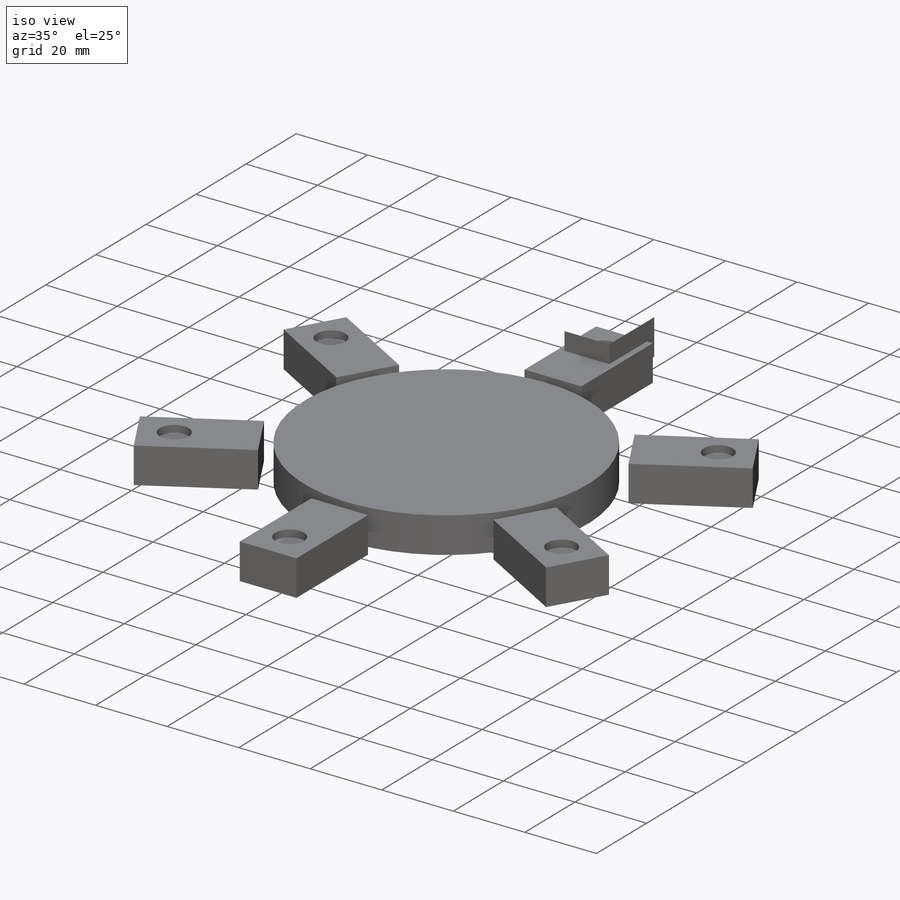
[diagram: iso view]
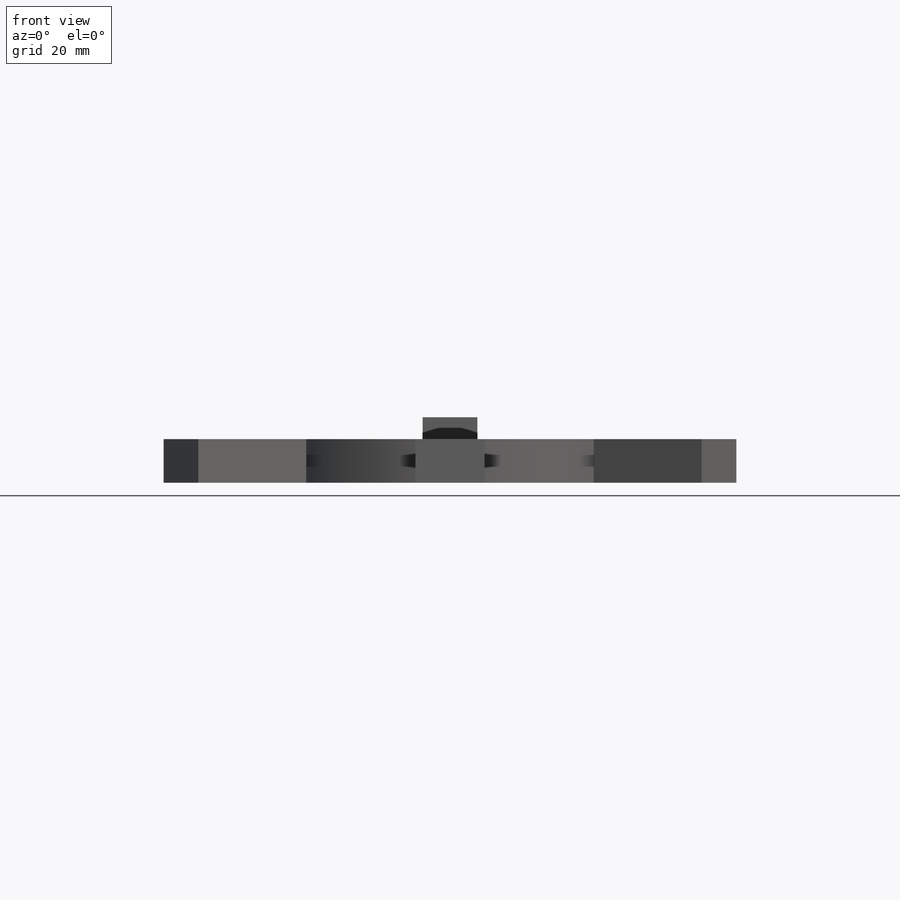
[diagram: front view]
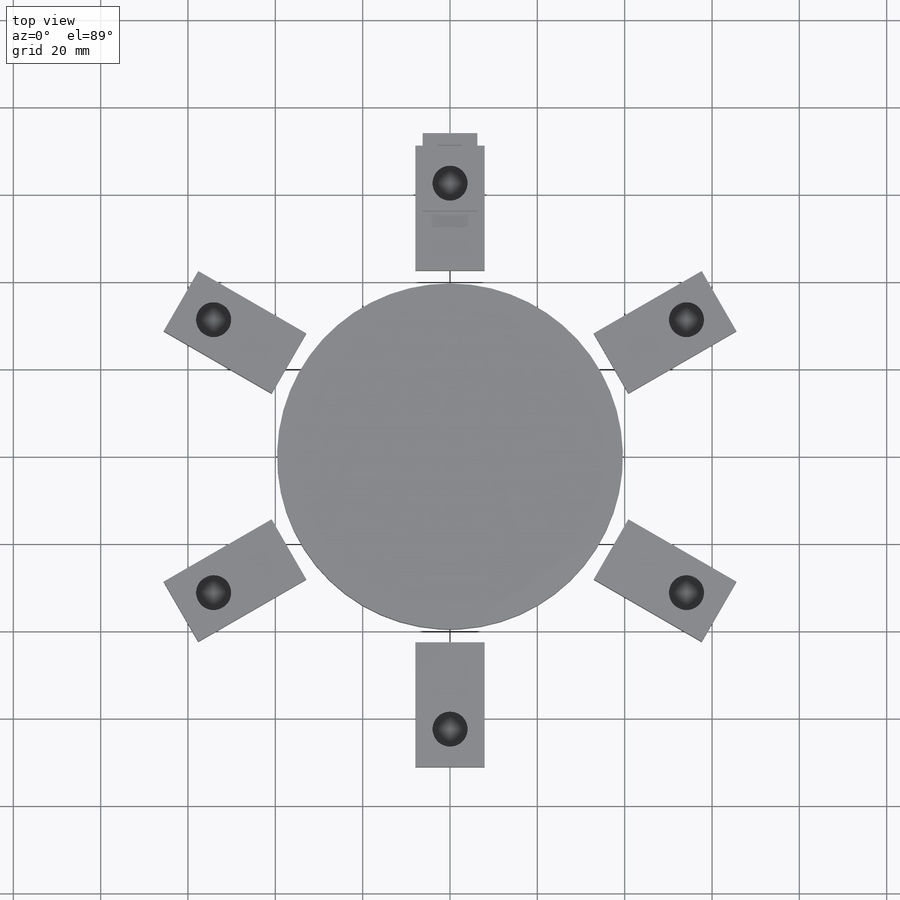
[diagram: top view]
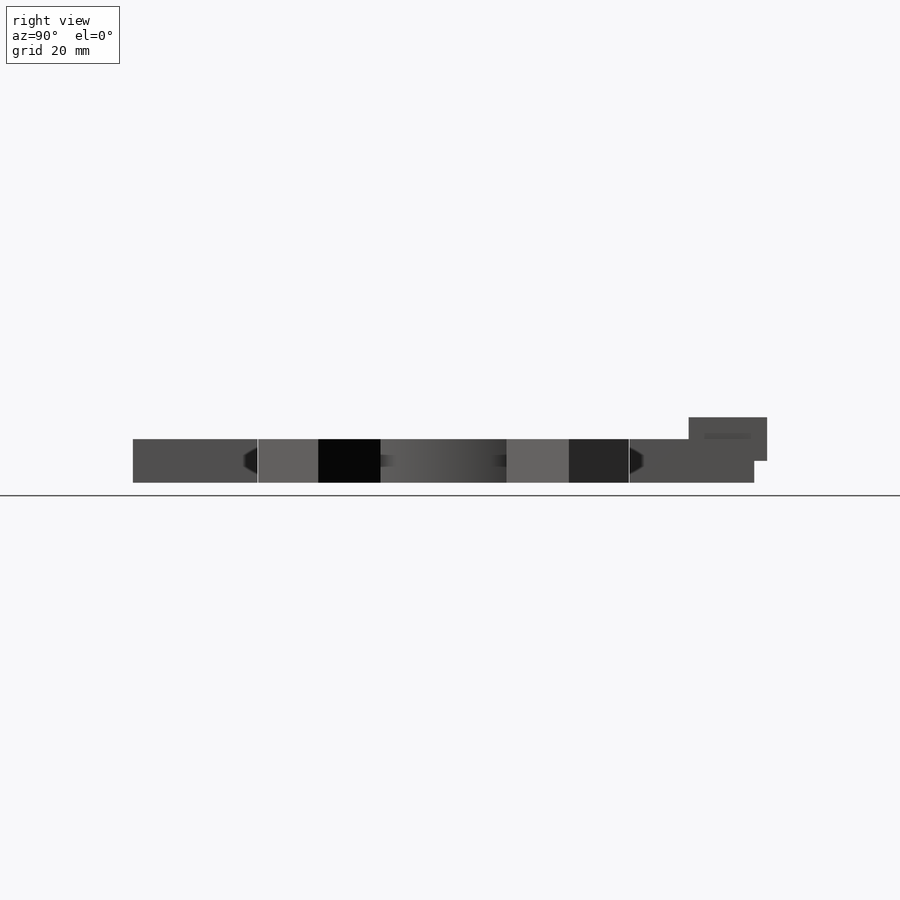
[diagram: right view]
SOLIDWORKS PART (.sldprt)
format: sldprt  version: not decoded by parser v0  size: 389,632 bytes
history: native  units: mm
features: sketch x5, extrude x2, material x1, surface_op x1, cut_extrude x1, pattern_circular x1 (+13 scaffold rows collapsed)
feature tree (24):
  scaffold x13  (default folders/planes/origin — collapsed)
  material  "Nylon 6/10"
  sketch  "Sketch1"
  extrude  "Boss-Extrude1"  Depth=10mm
  sketch  "Sketch2"
  extrude  "Boss-Extrude2"  Depth=10mm
  sketch  "Sketch3"
  surface_op  "Surface-Extrude1"
  sketch  "Sketch3<2>"  dims[D1=10.0mm]
  sketch  "Sketch4"
  cut_extrude  "Cut-Extrude1"  Depth=2mm
  pattern_circular  "CirPattern3"  Count=6 Angle=360deg
decode coverage: 5 of 10 modeling features carry decoded parameters
note: suppression state not decoded; provenance and decode notes live in map.json
